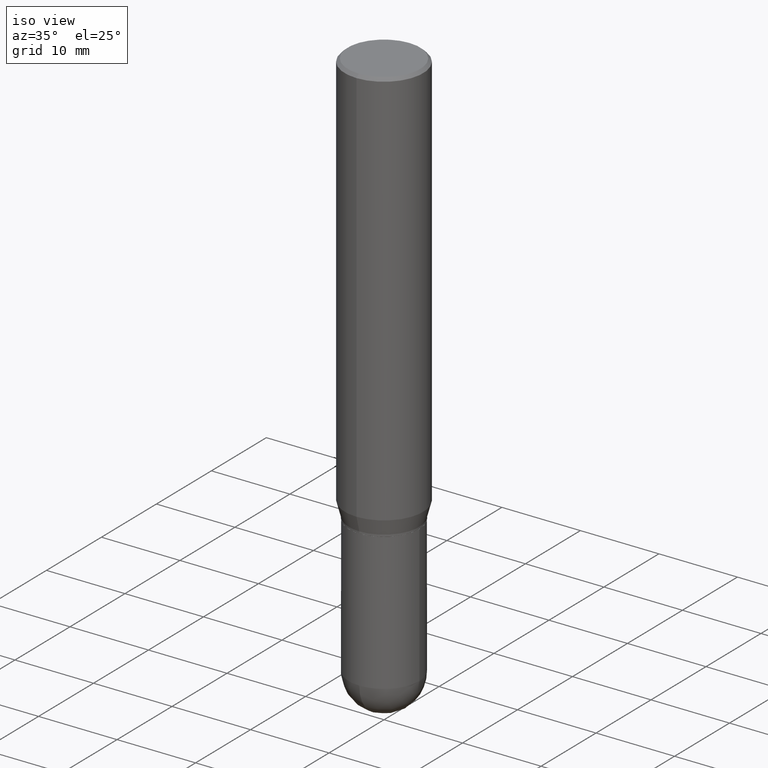
[diagram: clean part render]
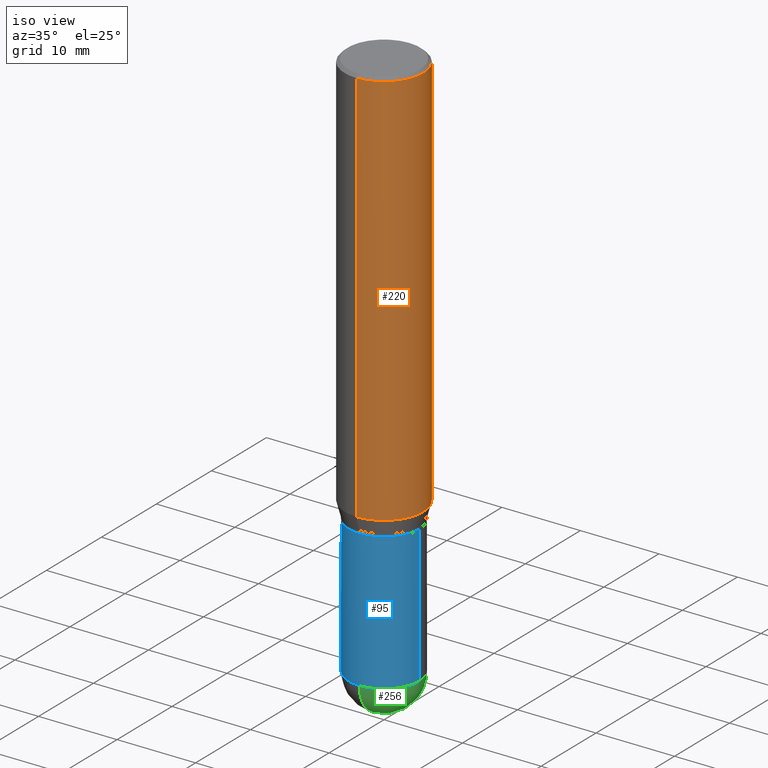
[diagram: same view with three faces highlighted in distinct colors, each labeled with its STEP entity id]
A machine part, iso view with three faces highlighted in distinct colors.
Their STEP definitions:

[orange] entity #220 — the highlighted cylindrical surface (partial cylindrical patch) has radius 5 mm, axis along (-0, 0, 1).
#6 = DIRECTION ( 'NONE',  ( -6.982962677686265133E-15, -1.000000000000000000, 3.491137977679279424E-15 ) ) ;
#25 = ORIENTED_EDGE ( 'NONE', *, *, #456, .T. ) ;
#26 = CIRCLE ( 'NONE', #118, 0.1968499999999999694 ) ;
#30 = LINE ( 'NONE', #348, #247 ) ;
#34 = CARTESIAN_POINT ( 'NONE',  ( 1.398703375343805514E-15, 0.1968499999999929750, -2.003178599090894352 ) ) ;
#46 = CARTESIAN_POINT ( 'NONE',  ( 0.000000000000000000, 0.000000000000000000, 0.000000000000000000 ) ) ;
#48 = VERTEX_POINT ( 'NONE', #351 ) ;
#83 = EDGE_LOOP ( 'NONE', ( #25, #108, #92, #182 ) ) ;
#92 = ORIENTED_EDGE ( 'NONE', *, *, #100, .F. ) ;
#96 = VECTOR ( 'NONE', #245, 39.37007874015748143 ) ;
#100 = EDGE_CURVE ( 'NONE', #111, #48, #372, .T. ) ;
#108 = ORIENTED_EDGE ( 'NONE', *, *, #214, .T. ) ;
#111 = VERTEX_POINT ( 'NONE', #301 ) ;
#116 = LINE ( 'NONE', #278, #96 ) ;
#118 = AXIS2_PLACEMENT_3D ( 'NONE', #415, #388, #358 ) ;
#176 = DIRECTION ( 'NONE',  ( -2.446062689571483486E-29, 3.490630864032153582E-15, 1.000000000000000000 ) ) ;
#181 = VERTEX_POINT ( 'NONE', #34 ) ;
#182 = ORIENTED_EDGE ( 'NONE', *, *, #381, .F. ) ;
#205 = CYLINDRICAL_SURFACE ( 'NONE', #497, 0.1968499999999999694 ) ;
#208 = VERTEX_POINT ( 'NONE', #431 ) ;
#214 = EDGE_CURVE ( 'NONE', #181, #48, #30, .T. ) ;
#220 = ADVANCED_FACE ( 'NONE', ( #244 ), #205, .T. ) ;
#244 = FACE_OUTER_BOUND ( 'NONE', #83, .T. ) ;
#245 = DIRECTION ( 'NONE',  ( -2.446062689571483486E-29, 3.490630864032153582E-15, 1.000000000000000000 ) ) ;
#247 = VECTOR ( 'NONE', #325, 39.37007874015748143 ) ;
#248 = CARTESIAN_POINT ( 'NONE',  ( 3.669094034357428610E-31, -5.235946296048520279E-17, -0.01500000000000083038 ) ) ;
#278 = CARTESIAN_POINT ( 'NONE',  ( -1.374596203102541214E-15, -0.1968499999999999694, 6.871306855847293015E-16 ) ) ;
#301 = CARTESIAN_POINT ( 'NONE',  ( -1.374596203102541017E-15, -0.1968500000000000805, -0.01500000000000014343 ) ) ;
#325 = DIRECTION ( 'NONE',  ( -2.446062689571483486E-29, 3.490630864032153582E-15, 1.000000000000000000 ) ) ;
#348 = CARTESIAN_POINT ( 'NONE',  ( 1.398703375343756802E-15, 0.1968499999999999694, -6.871306855847293015E-16 ) ) ;
#351 = CARTESIAN_POINT ( 'NONE',  ( 1.398703375343806303E-15, 0.1968499999999999139, -0.01500000000000151733 ) ) ;
#358 = DIRECTION ( 'NONE',  ( -6.982962677686265922E-15, -1.000000000000000000, 4.163344669033675634E-15 ) ) ;
#359 = DIRECTION ( 'NONE',  ( -6.982962677686265922E-15, -1.000000000000000000, 3.490630864032153582E-15 ) ) ;
#372 = CIRCLE ( 'NONE', #404, 0.1968500000000000250 ) ;
#381 = EDGE_CURVE ( 'NONE', #208, #111, #116, .T. ) ;
#388 = DIRECTION ( 'NONE',  ( -2.446062689571483486E-29, 3.490630864032153582E-15, 1.000000000000000000 ) ) ;
#404 = AXIS2_PLACEMENT_3D ( 'NONE', #248, #407, #6 ) ;
#407 = DIRECTION ( 'NONE',  ( -2.446062689571483486E-29, 3.490630864032153582E-15, 1.000000000000000000 ) ) ;
#415 = CARTESIAN_POINT ( 'NONE',  ( 4.899900431784307607E-29, -6.992357044155365474E-15, -2.003178599090893464 ) ) ;
#431 = CARTESIAN_POINT ( 'NONE',  ( -1.374596203102492502E-15, -0.1968500000000069916, -2.003178599090893020 ) ) ;
#456 = EDGE_CURVE ( 'NONE', #208, #181, #26, .T. ) ;
#497 = AXIS2_PLACEMENT_3D ( 'NONE', #46, #176, #359 ) ;

[blue] entity #95 — the highlighted cylindrical surface (partial cylindrical patch) has radius 4.4996 mm, axis along (-0, 0, 1).
#18 = FACE_OUTER_BOUND ( 'NONE', #364, .T. ) ;
#23 = VERTEX_POINT ( 'NONE', #445 ) ;
#27 = DIRECTION ( 'NONE',  ( -2.445468806185136597E-29, 3.491481338843145583E-15, 1.000000000000000000 ) ) ;
#44 = DIRECTION ( 'NONE',  ( -2.445468806185136877E-29, 3.491481338843145188E-15, 1.000000000000000000 ) ) ;
#45 = VECTOR ( 'NONE', #202, 39.37007874015748143 ) ;
#53 = EDGE_CURVE ( 'NONE', #195, #58, #356, .T. ) ;
#58 = VERTEX_POINT ( 'NONE', #159 ) ;
#61 = ORIENTED_EDGE ( 'NONE', *, *, #81, .F. ) ;
#81 = EDGE_CURVE ( 'NONE', #192, #492, #154, .T. ) ;
#85 = AXIS2_PLACEMENT_3D ( 'NONE', #353, #387, #319 ) ;
#86 = CARTESIAN_POINT ( 'NONE',  ( 0.000000000000000000, 0.000000000000000000, 0.000000000000000000 ) ) ;
#95 = ADVANCED_FACE ( 'NONE', ( #18 ), #173, .T. ) ;
#98 = CARTESIAN_POINT ( 'NONE',  ( 0.1771500000000000574, -9.725433982314104551E-15, -2.775649999999999729 ) ) ;
#135 = ORIENTED_EDGE ( 'NONE', *, *, #471, .F. ) ;
#140 = CARTESIAN_POINT ( 'NONE',  ( -0.1771500000000000852, -7.229675687562965256E-15, -2.086699999999999999 ) ) ;
#154 = LINE ( 'NONE', #400, #309 ) ;
#159 = CARTESIAN_POINT ( 'NONE',  ( 0.1771500000000000852, -8.522705948116114900E-15, -2.086699999999999999 ) ) ;
#161 = DIRECTION ( 'NONE',  ( 1.000000000000000000, -6.982962677686269077E-15, 0.000000000000000000 ) ) ;
#173 = CYLINDRICAL_SURFACE ( 'NONE', #190, 0.1771500000000000574 ) ;
#190 = AXIS2_PLACEMENT_3D ( 'NONE', #86, #335, #290 ) ;
#192 = VERTEX_POINT ( 'NONE', #310 ) ;
#194 = EDGE_CURVE ( 'NONE', #23, #195, #215, .T. ) ;
#195 = VERTEX_POINT ( 'NONE', #98 ) ;
#202 = DIRECTION ( 'NONE',  ( -2.445468806185136877E-29, 3.491481338843145188E-15, 1.000000000000000000 ) ) ;
#215 = CIRCLE ( 'NONE', #85, 0.1771500000000000574 ) ;
#239 = AXIS2_PLACEMENT_3D ( 'NONE', #357, #27, #502 ) ;
#280 = CIRCLE ( 'NONE', #239, 0.1771500000000000574 ) ;
#281 = CIRCLE ( 'NONE', #498, 0.1771500000000000852 ) ;
#290 = DIRECTION ( 'NONE',  ( 1.000000000000000000, -6.982962677686266711E-15, 4.876176775795934672E-29 ) ) ;
#299 = ORIENTED_EDGE ( 'NONE', *, *, #53, .T. ) ;
#309 = VECTOR ( 'NONE', #44, 39.37007874015748143 ) ;
#310 = CARTESIAN_POINT ( 'NONE',  ( -0.1771500000000000574, -7.229675687562965256E-15, -2.775649999999999729 ) ) ;
#319 = DIRECTION ( 'NONE',  ( 1.000000000000000000, -6.982962677686270655E-15, 0.000000000000000000 ) ) ;
#328 = EDGE_CURVE ( 'NONE', #192, #23, #280, .T. ) ;
#329 = ORIENTED_EDGE ( 'NONE', *, *, #328, .T. ) ;
#335 = DIRECTION ( 'NONE',  ( -2.445468806185136597E-29, 3.491481338843145583E-15, 1.000000000000000000 ) ) ;
#350 = ORIENTED_EDGE ( 'NONE', *, *, #194, .T. ) ;
#353 = CARTESIAN_POINT ( 'NONE',  ( 6.787765491887772680E-29, -9.691130178159974964E-15, -2.775649999999999729 ) ) ;
#356 = LINE ( 'NONE', #399, #45 ) ;
#357 = CARTESIAN_POINT ( 'NONE',  ( 6.787765491887772680E-29, -9.691130178159974964E-15, -2.775649999999999729 ) ) ;
#360 = CARTESIAN_POINT ( 'NONE',  ( 5.102959757866523939E-29, -7.285674109763990928E-15, -2.086699999999999999 ) ) ;
#364 = EDGE_LOOP ( 'NONE', ( #61, #329, #350, #299, #135 ) ) ;
#387 = DIRECTION ( 'NONE',  ( -2.445468806185136597E-29, 3.491481338843145583E-15, 1.000000000000000000 ) ) ;
#399 = CARTESIAN_POINT ( 'NONE',  ( 0.1771500000000000574, -1.237031838352122591E-15, 8.638147158322501361E-30 ) ) ;
#400 = CARTESIAN_POINT ( 'NONE',  ( -0.1771500000000000574, 1.258726456399017887E-15, -8.713893512386568128E-30 ) ) ;
#445 = CARTESIAN_POINT ( 'NONE',  ( -1.258726456398949454E-15, -0.1771500000000097441, -2.775649999999999284 ) ) ;
#471 = EDGE_CURVE ( 'NONE', #492, #58, #281, .T. ) ;
#479 = DIRECTION ( 'NONE',  ( -2.445468806185136597E-29, 3.491481338843145583E-15, 1.000000000000000000 ) ) ;
#492 = VERTEX_POINT ( 'NONE', #140 ) ;
#498 = AXIS2_PLACEMENT_3D ( 'NONE', #360, #479, #161 ) ;
#502 = DIRECTION ( 'NONE',  ( 1.000000000000000000, -6.982962677686270655E-15, 0.000000000000000000 ) ) ;

[green] entity #256 — the highlighted spherical surface has radius 4.4996 mm.
#5 = CARTESIAN_POINT ( 'NONE',  ( 6.813022828238686978E-29, -9.654960234947156736E-15, -2.775649999999999729 ) ) ;
#23 = VERTEX_POINT ( 'NONE', #445 ) ;
#29 = CARTESIAN_POINT ( 'NONE',  ( 1.237031838352190236E-15, 0.1771499999999903430, -2.775650000000000173 ) ) ;
#39 = CARTESIAN_POINT ( 'NONE',  ( 7.253812262660790316E-29, -1.026262884509977305E-14, -2.952799999999999869 ) ) ;
#41 = ORIENTED_EDGE ( 'NONE', *, *, #115, .T. ) ;
#75 = DIRECTION ( 'NONE',  ( 6.982962677686265133E-15, 1.000000000000000000, -3.084220145260245435E-15 ) ) ;
#85 = AXIS2_PLACEMENT_3D ( 'NONE', #353, #387, #319 ) ;
#98 = CARTESIAN_POINT ( 'NONE',  ( 0.1771500000000000574, -9.725433982314104551E-15, -2.775649999999999729 ) ) ;
#110 = CARTESIAN_POINT ( 'NONE',  ( 6.787765491887772680E-29, -9.691130178159974964E-15, -2.775649999999999729 ) ) ;
#114 = CARTESIAN_POINT ( 'NONE',  ( 6.813022828238686978E-29, -9.654960234947156736E-15, -2.775649999999999729 ) ) ;
#115 = EDGE_CURVE ( 'NONE', #318, #284, #342, .T. ) ;
#137 = AXIS2_PLACEMENT_3D ( 'NONE', #114, #440, #277 ) ;
#138 = AXIS2_PLACEMENT_3D ( 'NONE', #5, #177, #167 ) ;
#167 = DIRECTION ( 'NONE',  ( 6.982962677686264344E-15, 1.000000000000000000, 0.000000000000000000 ) ) ;
#177 = DIRECTION ( 'NONE',  ( 1.000000000000000000, -6.982962677686265922E-15, 4.883557194083112340E-29 ) ) ;
#194 = EDGE_CURVE ( 'NONE', #23, #195, #215, .T. ) ;
#195 = VERTEX_POINT ( 'NONE', #98 ) ;
#200 = SPHERICAL_SURFACE ( 'NONE', #447, 0.1771500000000000574 ) ;
#210 = EDGE_LOOP ( 'NONE', ( #391, #41, #430, #252 ) ) ;
#215 = CIRCLE ( 'NONE', #85, 0.1771500000000000574 ) ;
#240 = CARTESIAN_POINT ( 'NONE',  ( 6.813022828238686978E-29, -9.654960234947156736E-15, -2.775649999999999729 ) ) ;
#251 = DIRECTION ( 'NONE',  ( 1.000000000000000000, -6.982962677686270655E-15, 0.000000000000000000 ) ) ;
#252 = ORIENTED_EDGE ( 'NONE', *, *, #194, .F. ) ;
#254 = CIRCLE ( 'NONE', #380, 0.1771500000000000574 ) ;
#256 = ADVANCED_FACE ( 'NONE', ( #428 ), #200, .T. ) ;
#277 = DIRECTION ( 'NONE',  ( -7.105427357600999492E-15, -1.000000000000000000, 0.000000000000000000 ) ) ;
#284 = VERTEX_POINT ( 'NONE', #29 ) ;
#318 = VERTEX_POINT ( 'NONE', #39 ) ;
#319 = DIRECTION ( 'NONE',  ( 1.000000000000000000, -6.982962677686270655E-15, 0.000000000000000000 ) ) ;
#342 = CIRCLE ( 'NONE', #138, 0.1771500000000000574 ) ;
#353 = CARTESIAN_POINT ( 'NONE',  ( 6.787765491887772680E-29, -9.691130178159974964E-15, -2.775649999999999729 ) ) ;
#380 = AXIS2_PLACEMENT_3D ( 'NONE', #110, #496, #251 ) ;
#386 = DIRECTION ( 'NONE',  ( -1.000000000000000000, 6.982962677686265133E-15, -4.883557194083112340E-29 ) ) ;
#387 = DIRECTION ( 'NONE',  ( -2.445468806185136597E-29, 3.491481338843145583E-15, 1.000000000000000000 ) ) ;
#391 = ORIENTED_EDGE ( 'NONE', *, *, #423, .F. ) ;
#423 = EDGE_CURVE ( 'NONE', #318, #23, #427, .T. ) ;
#427 = CIRCLE ( 'NONE', #137, 0.1771500000000000574 ) ;
#428 = FACE_OUTER_BOUND ( 'NONE', #210, .T. ) ;
#430 = ORIENTED_EDGE ( 'NONE', *, *, #480, .F. ) ;
#440 = DIRECTION ( 'NONE',  ( -1.000000000000000000, 7.105427357601001070E-15, -4.926315508542082329E-29 ) ) ;
#445 = CARTESIAN_POINT ( 'NONE',  ( -1.258726456398949454E-15, -0.1771500000000097441, -2.775649999999999284 ) ) ;
#447 = AXIS2_PLACEMENT_3D ( 'NONE', #240, #386, #75 ) ;
#480 = EDGE_CURVE ( 'NONE', #195, #284, #254, .T. ) ;
#496 = DIRECTION ( 'NONE',  ( -2.445468806185136597E-29, 3.491481338843145583E-15, 1.000000000000000000 ) ) ;